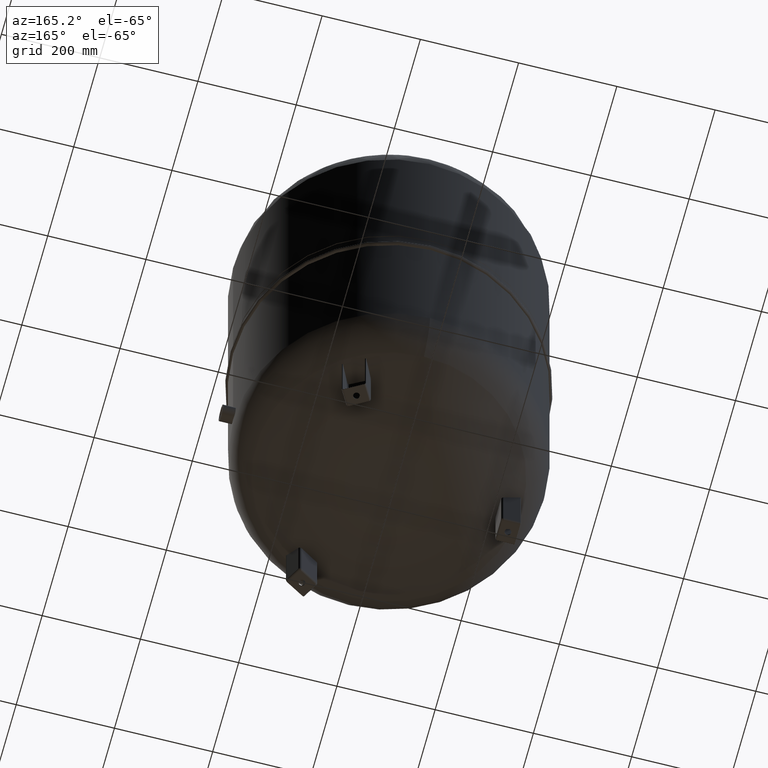
[diagram: clean part render]
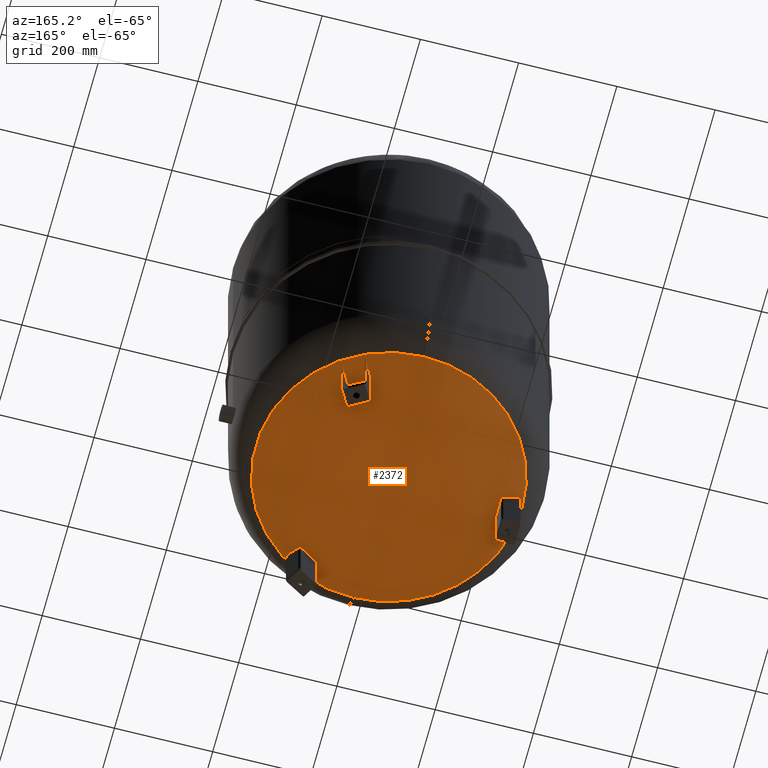
[diagram: same view with one face highlighted and labeled with its STEP entity id]
A machine part, auxiliary view. The second image highlights one B-rep face of the part: STEP entity #2372.
In plain terms, the highlighted spherical surface has radius 509 mm.
Its self-contained STEP definition (entity closure, byte-faithful):
#2311=CARTESIAN_POINT('',(8.065826E-015,-270.639024390243830,122.913560318702380));
#2312=VERTEX_POINT('',#2311);
#2328=CARTESIAN_POINT('',(-2.507680E-014,270.639024390243830,122.913560318702480));
#2329=VERTEX_POINT('',#2328);
#2337=CARTESIAN_POINT('',(-270.639024390243830,-1.431249E-014,122.913560318702420));
#2338=VERTEX_POINT('',#2337);
#2339=CARTESIAN_POINT('',(-7.495146E-015,-1.431249E-014,122.913560318702440));
#2340=DIRECTION('',(0.0,0.0,1.0));
#2341=DIRECTION('',(-1.0,0.0,0.0));
#2342=AXIS2_PLACEMENT_3D('',#2339,#2340,#2341);
#2343=CIRCLE('',#2342,270.639024390243830);
#2344=EDGE_CURVE('',#2329,#2338,#2343,.T.);
#2346=CARTESIAN_POINT('',(-7.495146E-015,-1.431249E-014,122.913560318702440));
#2347=DIRECTION('',(0.0,0.0,1.0));
#2348=DIRECTION('',(-1.0,0.0,0.0));
#2349=AXIS2_PLACEMENT_3D('',#2346,#2347,#2348);
#2350=CIRCLE('',#2349,270.639024390243830);
#2351=EDGE_CURVE('',#2338,#2312,#2350,.T.);
#2356=CARTESIAN_POINT('',(-1.005746E-013,-9.350178E-014,554.0));
#2357=DIRECTION('',(0.0,-1.0,0.0));
#2358=DIRECTION('',(1.0,0.0,0.0));
#2359=AXIS2_PLACEMENT_3D('',#2356,#2357,#2358);
#2360=SPHERICAL_SURFACE('',#2359,509.000000000000060);
#2361=ORIENTED_EDGE('',*,*,#2351,.F.);
#2362=ORIENTED_EDGE('',*,*,#2344,.F.);
#2363=CARTESIAN_POINT('',(-7.495146E-015,-1.431249E-014,122.913560318702440));
#2364=DIRECTION('',(0.0,0.0,1.0));
#2365=DIRECTION('',(-1.0,0.0,0.0));
#2366=AXIS2_PLACEMENT_3D('',#2363,#2364,#2365);
#2367=CIRCLE('',#2366,270.639024390243830);
#2368=EDGE_CURVE('',#2312,#2329,#2367,.T.);
#2369=ORIENTED_EDGE('',*,*,#2368,.F.);
#2370=EDGE_LOOP('',(#2361,#2362,#2369));
#2371=FACE_OUTER_BOUND('',#2370,.T.);
#2372=ADVANCED_FACE('',(#2371),#2360,.T.);